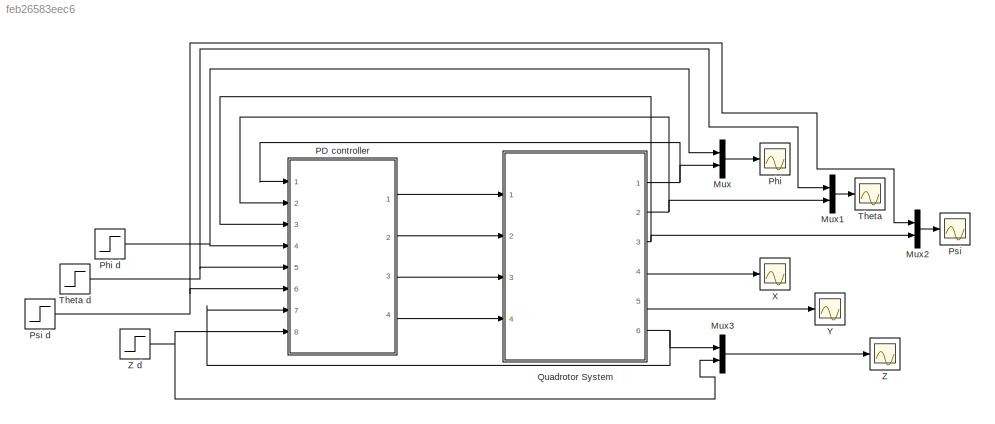
MODEL slx_feb26583eec6
KIND model
CONFIG AbsTol = auto
CONFIG EnableMultiTasking = off
CONFIG FixedStep = auto
CONFIG MaxStep = auto
CONFIG MinStep = auto
CONFIG RelTol = 1e-3
CONFIG SampleTimeConstraint = Unconstrained
CONFIG Solver = VariableStepAuto
CONFIG SolverName = VariableStepAuto
CONFIG StartTime = 0.0
CONFIG StopTime = 10.0
BLOCK [Mux] Mux
  DisplayOption = bar
  Inputs = 2
  Ports = [2, 1]
BLOCK [Mux] Mux1
  DisplayOption = bar
  Inputs = 2
  Ports = [2, 1]
BLOCK [Mux] Mux2
  DisplayOption = bar
  Inputs = 2
  Ports = [2, 1]
BLOCK [Mux] Mux3
  DisplayOption = bar
  Inputs = 2
  Ports = [2, 1]
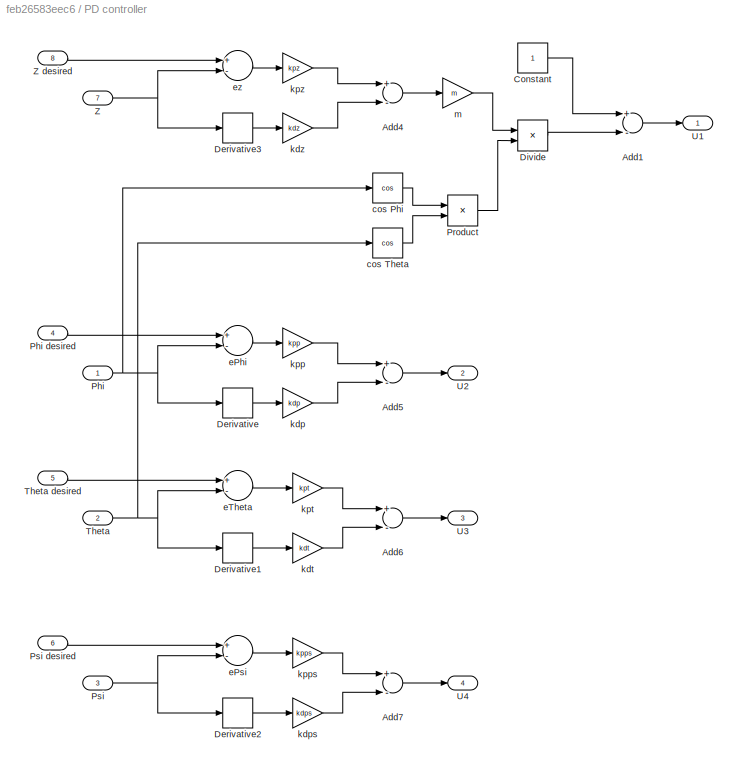
BLOCK [SubSystem] PD controller
  Ports = [8, 4]
  RequestExecContextInheritance = off
  Variant = off
BLOCK [Sum] PD controller/Add1
  InputSameDT = off
  Inputs = +-
  OutDataTypeStr = Inherit: Inherit via internal rule
  Ports = [2, 1]
  SaturateOnIntegerOverflow = off
BLOCK [Sum] PD controller/Add4
  InputSameDT = off
  Inputs = +-
  OutDataTypeStr = Inherit: Inherit via internal rule
  Ports = [2, 1]
  SaturateOnIntegerOverflow = off
BLOCK [Sum] PD controller/Add5
  InputSameDT = off
  Inputs = +-
  OutDataTypeStr = Inherit: Inherit via internal rule
  Ports = [2, 1]
  SaturateOnIntegerOverflow = off
BLOCK [Sum] PD controller/Add6
  InputSameDT = off
  Inputs = +-
  OutDataTypeStr = Inherit: Inherit via internal rule
  Ports = [2, 1]
  SaturateOnIntegerOverflow = off
BLOCK [Sum] PD controller/Add7
  InputSameDT = off
  Inputs = +-
  OutDataTypeStr = Inherit: Inherit via internal rule
  Ports = [2, 1]
  SaturateOnIntegerOverflow = off
BLOCK [Constant] PD controller/Constant
BLOCK [Derivative] PD controller/Derivative
BLOCK [Derivative] PD controller/Derivative1
BLOCK [Derivative] PD controller/Derivative2
BLOCK [Derivative] PD controller/Derivative3
BLOCK [Product] PD controller/Divide
  InputSameDT = off
  Inputs = */
  OutDataTypeStr = Inherit: Inherit via internal rule
  Ports = [2, 1]
  RndMeth = Floor
  SaturateOnIntegerOverflow = off
BLOCK [Inport] PD controller/Phi
  IconDisplay = Port number
BLOCK [Inport] PD controller/Phi desired
  IconDisplay = Port number
  Port = 4
BLOCK [Product] PD controller/Product
  InputSameDT = off
  OutDataTypeStr = Inherit: Inherit via internal rule
  Ports = [2, 1]
  SaturateOnIntegerOverflow = off
BLOCK [Inport] PD controller/Psi
  IconDisplay = Port number
  Port = 3
BLOCK [Inport] PD controller/Psi desired
  IconDisplay = Port number
  Port = 6
BLOCK [Inport] PD controller/Theta
  IconDisplay = Port number
  Port = 2
BLOCK [Inport] PD controller/Theta desired
  IconDisplay = Port number
  Port = 5
BLOCK [Outport] PD controller/U1
  IconDisplay = Port number
BLOCK [Outport] PD controller/U2
  IconDisplay = Port number
  Port = 2
BLOCK [Outport] PD controller/U3
  IconDisplay = Port number
  Port = 3
BLOCK [Outport] PD controller/U4
  IconDisplay = Port number
  Port = 4
BLOCK [Inport] PD controller/Z
  IconDisplay = Port number
  Port = 7
BLOCK [Inport] PD controller/Z desired
  IconDisplay = Port number
  Port = 8
BLOCK [Trigonometry] PD controller/cos Phi
  Operator = cos
  Ports = [1, 1]
BLOCK [Trigonometry] PD controller/cos Theta
  Operator = cos
  Ports = [1, 1]
BLOCK [Sum] PD controller/ePhi
  InputSameDT = off
  Inputs = +-
  OutDataTypeStr = Inherit: Inherit via internal rule
  Ports = [2, 1]
  SaturateOnIntegerOverflow = off
BLOCK [Sum] PD controller/ePsi
  InputSameDT = off
  Inputs = +-
  OutDataTypeStr = Inherit: Inherit via internal rule
  Ports = [2, 1]
  SaturateOnIntegerOverflow = off
BLOCK [Sum] PD controller/eTheta
  InputSameDT = off
  Inputs = +-
  OutDataTypeStr = Inherit: Inherit via internal rule
  Ports = [2, 1]
  SaturateOnIntegerOverflow = off
BLOCK [Sum] PD controller/ez
  InputSameDT = off
  Inputs = +-
  OutDataTypeStr = Inherit: Inherit via internal rule
  Ports = [2, 1]
  SaturateOnIntegerOverflow = off
BLOCK [Gain] PD controller/kdp
  Gain = kdp
  OutDataTypeStr = Inherit: Inherit via internal rule
  ParamDataTypeStr = Inherit: Inherit via internal rule
  SaturateOnIntegerOverflow = off
BLOCK [Gain] PD controller/kdps
  Gain = kdps
  OutDataTypeStr = Inherit: Inherit via internal rule
  ParamDataTypeStr = Inherit: Inherit via internal rule
  SaturateOnIntegerOverflow = off
BLOCK [Gain] PD controller/kdt
  Gain = kdt
  OutDataTypeStr = Inherit: Inherit via internal rule
  ParamDataTypeStr = Inherit: Inherit via internal rule
  SaturateOnIntegerOverflow = off
BLOCK [Gain] PD controller/kdz
  Gain = kdz
  OutDataTypeStr = Inherit: Inherit via internal rule
  ParamDataTypeStr = Inherit: Inherit via internal rule
  SaturateOnIntegerOverflow = off
BLOCK [Gain] PD controller/kpp
  Gain = kpp
  OutDataTypeStr = Inherit: Inherit via internal rule
  ParamDataTypeStr = Inherit: Inherit via internal rule
  SaturateOnIntegerOverflow = off
BLOCK [Gain] PD controller/kpps
  Gain = kpps
  OutDataTypeStr = Inherit: Inherit via internal rule
  ParamDataTypeStr = Inherit: Inherit via internal rule
  SaturateOnIntegerOverflow = off
BLOCK [Gain] PD controller/kpt
  Gain = kpt
  OutDataTypeStr = Inherit: Inherit via internal rule
  ParamDataTypeStr = Inherit: Inherit via internal rule
  SaturateOnIntegerOverflow = off
BLOCK [Gain] PD controller/kpz
  Gain = kpz
  OutDataTypeStr = Inherit: Inherit via internal rule
  ParamDataTypeStr = Inherit: Inherit via internal rule
  SaturateOnIntegerOverflow = off
BLOCK [Gain] PD controller/m
  Gain = m
  OutDataTypeStr = Inherit: Inherit via internal rule
  ParamDataTypeStr = Inherit: Inherit via internal rule
  SaturateOnIntegerOverflow = off
BLOCK [Scope] Phi
  NumInputPorts = 1
  Ports = [1]
  ScopeSpecificationString = Simulink.scopes.TimeScopeBlockCfg('CurrentConfiguration', extmgr.ConfigurationSet(extmgr.Configuration('Core','General UI',true),extmgr.Configuration('Core','Source UI',true),extmgr.Configuration('Sources','WiredSimulink',true,'DataLoggingSaveFormat','StructureWithTime','DataLoggingDecimation','1','DataLoggingDecimateData',true),extmgr.Configuration('Visuals','Time Domain',true,'DisplayPropertyDef...<+838ch>
BLOCK [Step] Phi d
  SampleTime = 0
BLOCK [Scope] Psi
  NumInputPorts = 1
  Ports = [1]
  ScopeSpecificationString = Simulink.scopes.TimeScopeBlockCfg('CurrentConfiguration', extmgr.ConfigurationSet(extmgr.Configuration('Core','General UI',true),extmgr.Configuration('Core','Source UI',true),extmgr.Configuration('Sources','WiredSimulink',true,'DataLoggingVariableName','ScopeData2','DataLoggingSaveFormat','StructureWithTime','DataLoggingDecimation','1','DataLoggingDecimateData',true),extmgr.Configuration('Visuals'...<+877ch>
BLOCK [Step] Psi d
  SampleTime = 0
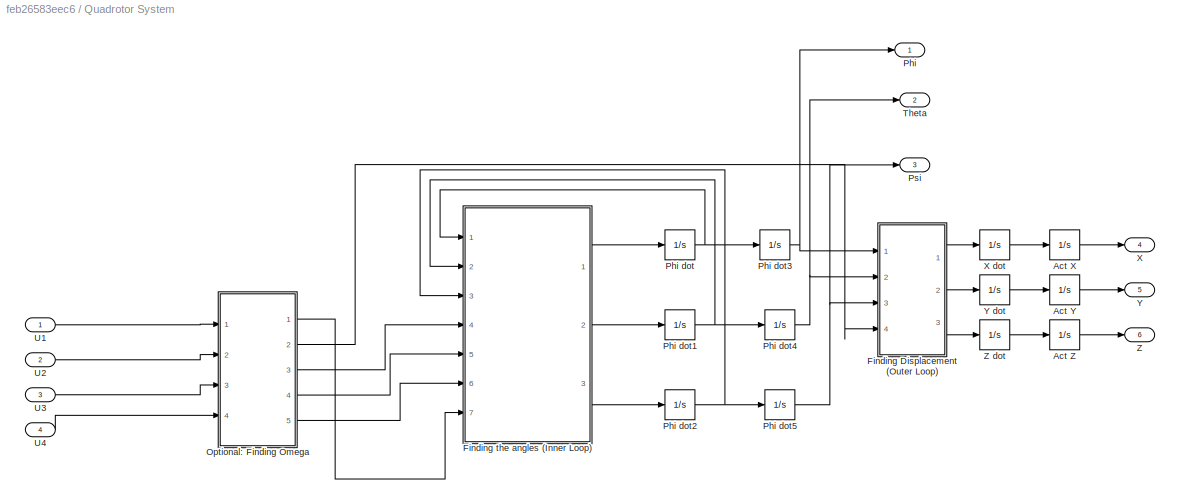
BLOCK [SubSystem] Quadrotor System
  Ports = [4, 6]
  RequestExecContextInheritance = off
  Variant = off
BLOCK [Integrator] Quadrotor System/Act X
  Ports = [1, 1]
BLOCK [Integrator] Quadrotor System/Act Y
  Ports = [1, 1]
BLOCK [Integrator] Quadrotor System/Act Z
  Ports = [1, 1]
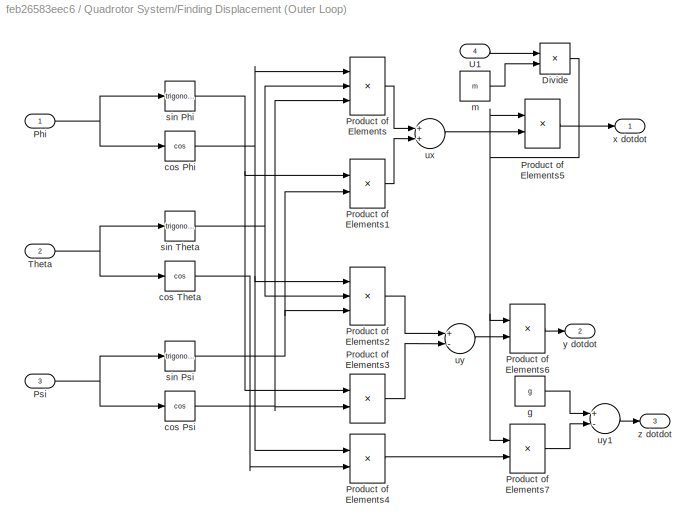
BLOCK [SubSystem] Quadrotor System/Finding Displacement (Outer Loop)
  Ports = [4, 3]
  RequestExecContextInheritance = off
  Variant = off
BLOCK [Product] Quadrotor System/Finding Displacement (Outer Loop)/Divide
  InputSameDT = off
  Inputs = */
  OutDataTypeStr = Inherit: Inherit via internal rule
  Ports = [2, 1]
  RndMeth = Floor
  SaturateOnIntegerOverflow = off
BLOCK [Inport] Quadrotor System/Finding Displacement (Outer Loop)/Phi
  IconDisplay = Port number
BLOCK [Product] Quadrotor System/Finding Displacement (Outer Loop)/Product of Elements
  InputSameDT = off
  Inputs = 3
  OutDataTypeStr = Inherit: Inherit via internal rule
  Ports = [3, 1]
  RndMeth = Floor
  SaturateOnIntegerOverflow = off
BLOCK [Product] Quadrotor System/Finding Displacement (Outer Loop)/Product of Elements1
  InputSameDT = off
  OutDataTypeStr = Inherit: Inherit via internal rule
  Ports = [2, 1]
  RndMeth = Floor
  SaturateOnIntegerOverflow = off
BLOCK [Product] Quadrotor System/Finding Displacement (Outer Loop)/Product of Elements2
  InputSameDT = off
  Inputs = 3
  OutDataTypeStr = Inherit: Inherit via internal rule
  Ports = [3, 1]
  RndMeth = Floor
  SaturateOnIntegerOverflow = off
BLOCK [Product] Quadrotor System/Finding Displacement (Outer Loop)/Product of Elements3
  InputSameDT = off
  OutDataTypeStr = Inherit: Inherit via internal rule
  Ports = [2, 1]
  RndMeth = Floor
  SaturateOnIntegerOverflow = off
BLOCK [Product] Quadrotor System/Finding Displacement (Outer Loop)/Product of Elements4
  InputSameDT = off
  OutDataTypeStr = Inherit: Inherit via internal rule
  Ports = [2, 1]
  RndMeth = Floor
  SaturateOnIntegerOverflow = off
BLOCK [Product] Quadrotor System/Finding Displacement (Outer Loop)/Product of Elements5
  InputSameDT = off
  OutDataTypeStr = Inherit: Inherit via internal rule
  Ports = [2, 1]
  RndMeth = Floor
  SaturateOnIntegerOverflow = off
BLOCK [Product] Quadrotor System/Finding Displacement (Outer Loop)/Product of Elements6
  InputSameDT = off
  OutDataTypeStr = Inherit: Inherit via internal rule
  Ports = [2, 1]
  RndMeth = Floor
  SaturateOnIntegerOverflow = off
BLOCK [Product] Quadrotor System/Finding Displacement (Outer Loop)/Product of Elements7
  InputSameDT = off
  OutDataTypeStr = Inherit: Inherit via internal rule
  Ports = [2, 1]
  RndMeth = Floor
  SaturateOnIntegerOverflow = off
BLOCK [Inport] Quadrotor System/Finding Displacement (Outer Loop)/Psi
  IconDisplay = Port number
  Port = 3
BLOCK [Inport] Quadrotor System/Finding Displacement (Outer Loop)/Theta
  IconDisplay = Port number
  Port = 2
BLOCK [Inport] Quadrotor System/Finding Displacement (Outer Loop)/U1
  IconDisplay = Port number
  Port = 4
BLOCK [Trigonometry] Quadrotor System/Finding Displacement (Outer Loop)/cos Phi
  Operator = cos
  Ports = [1, 1]
BLOCK [Trigonometry] Quadrotor System/Finding Displacement (Outer Loop)/cos Psi
  Operator = cos
  Ports = [1, 1]
BLOCK [Trigonometry] Quadrotor System/Finding Displacement (Outer Loop)/cos Theta
  Operator = cos
  Ports = [1, 1]
BLOCK [Constant] Quadrotor System/Finding Displacement (Outer Loop)/g
  Value = g
BLOCK [Constant] Quadrotor System/Finding Displacement (Outer Loop)/m
  Value = m
BLOCK [Trigonometry] Quadrotor System/Finding Displacement (Outer Loop)/sin Phi
  Ports = [1, 1]
BLOCK [Trigonometry] Quadrotor System/Finding Displacement (Outer Loop)/sin Psi
  Ports = [1, 1]
BLOCK [Trigonometry] Quadrotor System/Finding Displacement (Outer Loop)/sin Theta
  Ports = [1, 1]
BLOCK [Sum] Quadrotor System/Finding Displacement (Outer Loop)/ux
  InputSameDT = off
  OutDataTypeStr = Inherit: Inherit via internal rule
  Ports = [2, 1]
  SaturateOnIntegerOverflow = off
BLOCK [Sum] Quadrotor System/Finding Displacement (Outer Loop)/uy
  InputSameDT = off
  Inputs = +-
  OutDataTypeStr = Inherit: Inherit via internal rule
  Ports = [2, 1]
  SaturateOnIntegerOverflow = off
BLOCK [Sum] Quadrotor System/Finding Displacement (Outer Loop)/uy1
  InputSameDT = off
  Inputs = +-
  OutDataTypeStr = Inherit: Inherit via internal rule
  Ports = [2, 1]
  SaturateOnIntegerOverflow = off
BLOCK [Outport] Quadrotor System/Finding Displacement (Outer Loop)/x dotdot
  IconDisplay = Port number
BLOCK [Outport] Quadrotor System/Finding Displacement (Outer Loop)/y dotdot
  IconDisplay = Port number
  Port = 2
BLOCK [Outport] Quadrotor System/Finding Displacement (Outer Loop)/z dotdot
  IconDisplay = Port number
  Port = 3
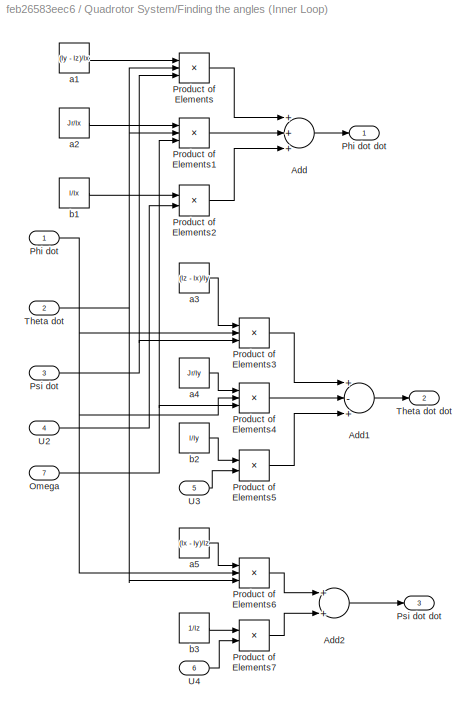
BLOCK [SubSystem] Quadrotor System/Finding the angles (Inner Loop)
  Ports = [7, 3]
  RequestExecContextInheritance = off
  Variant = off
BLOCK [Sum] Quadrotor System/Finding the angles (Inner Loop)/Add
  InputSameDT = off
  Inputs = +++
  OutDataTypeStr = Inherit: Inherit via internal rule
  Ports = [3, 1]
  SaturateOnIntegerOverflow = off
BLOCK [Sum] Quadrotor System/Finding the angles (Inner Loop)/Add1
  InputSameDT = off
  Inputs = +-+
  OutDataTypeStr = Inherit: Inherit via internal rule
  Ports = [3, 1]
  SaturateOnIntegerOverflow = off
BLOCK [Sum] Quadrotor System/Finding the angles (Inner Loop)/Add2
  InputSameDT = off
  OutDataTypeStr = Inherit: Inherit via internal rule
  Ports = [2, 1]
  SaturateOnIntegerOverflow = off
BLOCK [Inport] Quadrotor System/Finding the angles (Inner Loop)/Omega
  IconDisplay = Port number
  Port = 7
BLOCK [Inport] Quadrotor System/Finding the angles (Inner Loop)/Phi dot
  IconDisplay = Port number
BLOCK [Outport] Quadrotor System/Finding the angles (Inner Loop)/Phi dot dot
  IconDisplay = Port number
BLOCK [Product] Quadrotor System/Finding the angles (Inner Loop)/Product of Elements
  InputSameDT = off
  Inputs = 3
  OutDataTypeStr = Inherit: Inherit via internal rule
  Ports = [3, 1]
  RndMeth = Floor
  SaturateOnIntegerOverflow = off
BLOCK [Product] Quadrotor System/Finding the angles (Inner Loop)/Product of Elements1
  InputSameDT = off
  Inputs = 3
  OutDataTypeStr = Inherit: Inherit via internal rule
  Ports = [3, 1]
  RndMeth = Floor
  SaturateOnIntegerOverflow = off
BLOCK [Product] Quadrotor System/Finding the angles (Inner Loop)/Product of Elements2
  InputSameDT = off
  OutDataTypeStr = Inherit: Inherit via internal rule
  Ports = [2, 1]
  RndMeth = Floor
  SaturateOnIntegerOverflow = off
BLOCK [Product] Quadrotor System/Finding the angles (Inner Loop)/Product of Elements3
  InputSameDT = off
  Inputs = 3
  OutDataTypeStr = Inherit: Inherit via internal rule
  Ports = [3, 1]
  RndMeth = Floor
  SaturateOnIntegerOverflow = off
BLOCK [Product] Quadrotor System/Finding the angles (Inner Loop)/Product of Elements4
  InputSameDT = off
  Inputs = 3
  OutDataTypeStr = Inherit: Inherit via internal rule
  Ports = [3, 1]
  RndMeth = Floor
  SaturateOnIntegerOverflow = off
BLOCK [Product] Quadrotor System/Finding the angles (Inner Loop)/Product of Elements5
  InputSameDT = off
  OutDataTypeStr = Inherit: Inherit via internal rule
  Ports = [2, 1]
  RndMeth = Floor
  SaturateOnIntegerOverflow = off
BLOCK [Product] Quadrotor System/Finding the angles (Inner Loop)/Product of Elements6
  InputSameDT = off
  Inputs = 3
  OutDataTypeStr = Inherit: Inherit via internal rule
  Ports = [3, 1]
  RndMeth = Floor
  SaturateOnIntegerOverflow = off
BLOCK [Product] Quadrotor System/Finding the angles (Inner Loop)/Product of Elements7
  InputSameDT = off
  OutDataTypeStr = Inherit: Inherit via internal rule
  Ports = [2, 1]
  RndMeth = Floor
  SaturateOnIntegerOverflow = off
BLOCK [Inport] Quadrotor System/Finding the angles (Inner Loop)/Psi dot
  IconDisplay = Port number
  Port = 3
BLOCK [Outport] Quadrotor System/Finding the angles (Inner Loop)/Psi dot dot
  IconDisplay = Port number
  Port = 3
BLOCK [Inport] Quadrotor System/Finding the angles (Inner Loop)/Theta dot
  IconDisplay = Port number
  Port = 2
BLOCK [Outport] Quadrotor System/Finding the angles (Inner Loop)/Theta dot dot
  IconDisplay = Port number
  Port = 2
BLOCK [Inport] Quadrotor System/Finding the angles (Inner Loop)/U2
  IconDisplay = Port number
  Port = 4
BLOCK [Inport] Quadrotor System/Finding the angles (Inner Loop)/U3
  IconDisplay = Port number
  Port = 5
BLOCK [Inport] Quadrotor System/Finding the angles (Inner Loop)/U4
  IconDisplay = Port number
  Port = 6
BLOCK [Constant] Quadrotor System/Finding the angles (Inner Loop)/a1
  Value = (Iy - Iz)/Ix
BLOCK [Constant] Quadrotor System/Finding the angles (Inner Loop)/a2
  Value = Jr/Ix
BLOCK [Constant] Quadrotor System/Finding the angles (Inner Loop)/a3
  Value = (Iz - Ix)/Iy
BLOCK [Constant] Quadrotor System/Finding the angles (Inner Loop)/a4
  Value = Jr/Iy
BLOCK [Constant] Quadrotor System/Finding the angles (Inner Loop)/a5
  Value = (Ix - Iy)/Iz
BLOCK [Constant] Quadrotor System/Finding the angles (Inner Loop)/b1
  Value = l/Ix
BLOCK [Constant] Quadrotor System/Finding the angles (Inner Loop)/b2
  Value = l/Iy
BLOCK [Constant] Quadrotor System/Finding the angles (Inner Loop)/b3
  Value = 1/Iz
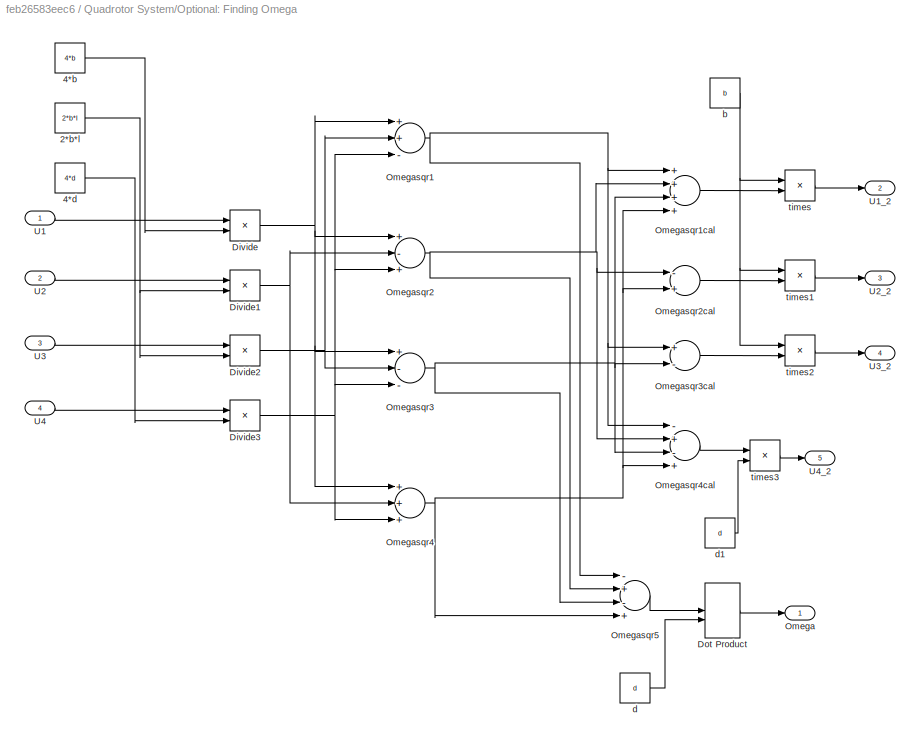
BLOCK [SubSystem] Quadrotor System/Optional: Finding Omega
  Ports = [4, 5]
  RequestExecContextInheritance = off
  Variant = off
BLOCK [Constant] Quadrotor System/Optional: Finding Omega/2*b*l
  Value = 2*b*l
BLOCK [Constant] Quadrotor System/Optional: Finding Omega/4*b
  Value = 4*b
BLOCK [Constant] Quadrotor System/Optional: Finding Omega/4*d
  Value = 4*d
BLOCK [Product] Quadrotor System/Optional: Finding Omega/Divide
  InputSameDT = off
  Inputs = */
  OutDataTypeStr = Inherit: Inherit via internal rule
  Ports = [2, 1]
  RndMeth = Floor
  SaturateOnIntegerOverflow = off
BLOCK [Product] Quadrotor System/Optional: Finding Omega/Divide1
  InputSameDT = off
  Inputs = */
  OutDataTypeStr = Inherit: Inherit via internal rule
  Ports = [2, 1]
  RndMeth = Floor
  SaturateOnIntegerOverflow = off
BLOCK [Product] Quadrotor System/Optional: Finding Omega/Divide2
  InputSameDT = off
  Inputs = */
  OutDataTypeStr = Inherit: Inherit via internal rule
  Ports = [2, 1]
  RndMeth = Floor
  SaturateOnIntegerOverflow = off
BLOCK [Product] Quadrotor System/Optional: Finding Omega/Divide3
  InputSameDT = off
  Inputs = */
  OutDataTypeStr = Inherit: Inherit via internal rule
  Ports = [2, 1]
  RndMeth = Floor
  SaturateOnIntegerOverflow = off
BLOCK [DotProduct] Quadrotor System/Optional: Finding Omega/Dot Product
  OutDataTypeStr = Inherit: Inherit via internal rule
BLOCK [Outport] Quadrotor System/Optional: Finding Omega/Omega
  IconDisplay = Port number
BLOCK [Sum] Quadrotor System/Optional: Finding Omega/Omegasqr1
  InputSameDT = off
  Inputs = ++-
  OutDataTypeStr = Inherit: Inherit via internal rule
  Ports = [3, 1]
  SaturateOnIntegerOverflow = off
BLOCK [Sum] Quadrotor System/Optional: Finding Omega/Omegasqr1cal
  InputSameDT = off
  Inputs = ++++
  OutDataTypeStr = Inherit: Inherit via internal rule
  Ports = [4, 1]
  SaturateOnIntegerOverflow = off
BLOCK [Sum] Quadrotor System/Optional: Finding Omega/Omegasqr2
  InputSameDT = off
  Inputs = +-+
  OutDataTypeStr = Inherit: Inherit via internal rule
  Ports = [3, 1]
  SaturateOnIntegerOverflow = off
BLOCK [Sum] Quadrotor System/Optional: Finding Omega/Omegasqr2cal
  InputSameDT = off
  Inputs = -+
  OutDataTypeStr = Inherit: Inherit via internal rule
  Ports = [2, 1]
  SaturateOnIntegerOverflow = off
BLOCK [Sum] Quadrotor System/Optional: Finding Omega/Omegasqr3
  InputSameDT = off
  Inputs = +--
  OutDataTypeStr = Inherit: Inherit via internal rule
  Ports = [3, 1]
  SaturateOnIntegerOverflow = off
BLOCK [Sum] Quadrotor System/Optional: Finding Omega/Omegasqr3cal
  InputSameDT = off
  Inputs = +-
  OutDataTypeStr = Inherit: Inherit via internal rule
  Ports = [2, 1]
  SaturateOnIntegerOverflow = off
BLOCK [Sum] Quadrotor System/Optional: Finding Omega/Omegasqr4
  InputSameDT = off
  Inputs = +++
  OutDataTypeStr = Inherit: Inherit via internal rule
  Ports = [3, 1]
  SaturateOnIntegerOverflow = off
BLOCK [Sum] Quadrotor System/Optional: Finding Omega/Omegasqr4cal
  InputSameDT = off
  Inputs = -+-+
  OutDataTypeStr = Inherit: Inherit via internal rule
  Ports = [4, 1]
  SaturateOnIntegerOverflow = off
BLOCK [Sum] Quadrotor System/Optional: Finding Omega/Omegasqr5
  InputSameDT = off
  Inputs = -+-+
  OutDataTypeStr = Inherit: Inherit via internal rule
  Ports = [4, 1]
  SaturateOnIntegerOverflow = off
BLOCK [Inport] Quadrotor System/Optional: Finding Omega/U1
  IconDisplay = Port number
BLOCK [Outport] Quadrotor System/Optional: Finding Omega/U1_2
  IconDisplay = Port number
  Port = 2
BLOCK [Inport] Quadrotor System/Optional: Finding Omega/U2
  IconDisplay = Port number
  Port = 2
BLOCK [Outport] Quadrotor System/Optional: Finding Omega/U2_2
  IconDisplay = Port number
  Port = 3
BLOCK [Inport] Quadrotor System/Optional: Finding Omega/U3
  IconDisplay = Port number
  Port = 3
BLOCK [Outport] Quadrotor System/Optional: Finding Omega/U3_2
  IconDisplay = Port number
  Port = 4
BLOCK [Inport] Quadrotor System/Optional: Finding Omega/U4
  IconDisplay = Port number
  Port = 4
BLOCK [Outport] Quadrotor System/Optional: Finding Omega/U4_2
  IconDisplay = Port number
  Port = 5
BLOCK [Constant] Quadrotor System/Optional: Finding Omega/b
  Value = b
BLOCK [Constant] Quadrotor System/Optional: Finding Omega/d
  Value = d
BLOCK [Constant] Quadrotor System/Optional: Finding Omega/d1
  Value = d
BLOCK [Product] Quadrotor System/Optional: Finding Omega/times
  InputSameDT = off
  Inputs = **
  OutDataTypeStr = Inherit: Inherit via internal rule
  Ports = [2, 1]
  RndMeth = Floor
  SaturateOnIntegerOverflow = off
BLOCK [Product] Quadrotor System/Optional: Finding Omega/times1
  InputSameDT = off
  Inputs = **
  OutDataTypeStr = Inherit: Inherit via internal rule
  Ports = [2, 1]
  RndMeth = Floor
  SaturateOnIntegerOverflow = off
BLOCK [Product] Quadrotor System/Optional: Finding Omega/times2
  InputSameDT = off
  Inputs = **
  OutDataTypeStr = Inherit: Inherit via internal rule
  Ports = [2, 1]
  RndMeth = Floor
  SaturateOnIntegerOverflow = off
BLOCK [Product] Quadrotor System/Optional: Finding Omega/times3
  InputSameDT = off
  Inputs = **
  OutDataTypeStr = Inherit: Inherit via internal rule
  Ports = [2, 1]
  RndMeth = Floor
  SaturateOnIntegerOverflow = off
BLOCK [Outport] Quadrotor System/Phi
  IconDisplay = Port number
BLOCK [Integrator] Quadrotor System/Phi dot
  Ports = [1, 1]
BLOCK [Integrator] Quadrotor System/Phi dot1
  Ports = [1, 1]
  ZeroCross = off
BLOCK [Integrator] Quadrotor System/Phi dot2
  Ports = [1, 1]
  ZeroCross = off
BLOCK [Integrator] Quadrotor System/Phi dot3
  Ports = [1, 1]
  ZeroCross = off
BLOCK [Integrator] Quadrotor System/Phi dot4
  Ports = [1, 1]
  ZeroCross = off
BLOCK [Integrator] Quadrotor System/Phi dot5
  Ports = [1, 1]
  ZeroCross = off
BLOCK [Outport] Quadrotor System/Psi
  IconDisplay = Port number
  Port = 3
BLOCK [Outport] Quadrotor System/Theta
  IconDisplay = Port number
  Port = 2
BLOCK [Inport] Quadrotor System/U1
  IconDisplay = Port number
BLOCK [Inport] Quadrotor System/U2
  IconDisplay = Port number
  Port = 2
BLOCK [Inport] Quadrotor System/U3
  IconDisplay = Port number
  Port = 3
BLOCK [Inport] Quadrotor System/U4
  IconDisplay = Port number
  Port = 4
BLOCK [Outport] Quadrotor System/X
  IconDisplay = Port number
  Port = 4
BLOCK [Integrator] Quadrotor System/X dot
  Ports = [1, 1]
BLOCK [Outport] Quadrotor System/Y
  IconDisplay = Port number
  Port = 5
BLOCK [Integrator] Quadrotor System/Y dot
  Ports = [1, 1]
BLOCK [Outport] Quadrotor System/Z
  IconDisplay = Port number
  Port = 6
BLOCK [Integrator] Quadrotor System/Z dot
  Ports = [1, 1]
BLOCK [Scope] Theta
  NumInputPorts = 1
  Ports = [1]
  ScopeSpecificationString = Simulink.scopes.TimeScopeBlockCfg('CurrentConfiguration', extmgr.ConfigurationSet(extmgr.Configuration('Core','General UI',true),extmgr.Configuration('Core','Source UI',true),extmgr.Configuration('Sources','WiredSimulink',true,'DataLoggingVariableName','ScopeData1','DataLoggingSaveFormat','StructureWithTime','DataLoggingDecimation','1','DataLoggingDecimateData',true),extmgr.Configuration('Visuals'...<+877ch>
BLOCK [Step] Theta d
  SampleTime = 0
BLOCK [Scope] X
  NumInputPorts = 1
  Ports = [1]
  ScopeSpecificationString = Simulink.scopes.TimeScopeBlockCfg('CurrentConfiguration', extmgr.ConfigurationSet(extmgr.Configuration('Core','General UI',true),extmgr.Configuration('Core','Source UI',true),extmgr.Configuration('Sources','WiredSimulink',true,'DataLoggingVariableName','ScopeData3','DataLoggingSaveFormat','StructureWithTime','DataLoggingLimitDataPoints',true,'DataLoggingDecimation','1','DataLoggingDecimateData',tr...<+911ch>
BLOCK [Scope] Y
  NumInputPorts = 1
  Ports = [1]
  ScopeSpecificationString = Simulink.scopes.TimeScopeBlockCfg('CurrentConfiguration', extmgr.ConfigurationSet(extmgr.Configuration('Core','General UI',true),extmgr.Configuration('Core','Source UI',true),extmgr.Configuration('Sources','WiredSimulink',true,'DataLoggingVariableName','ScopeData5','DataLoggingSaveFormat','StructureWithTime','DataLoggingLimitDataPoints',true,'DataLoggingDecimation','1','DataLoggingDecimateData',tr...<+911ch>
BLOCK [Scope] Z
  NumInputPorts = 1
  Ports = [1]
  ScopeSpecificationString = Simulink.scopes.TimeScopeBlockCfg('CurrentConfiguration', extmgr.ConfigurationSet(extmgr.Configuration('Core','General UI',true),extmgr.Configuration('Core','Source UI',true),extmgr.Configuration('Sources','WiredSimulink',true,'DataLoggingVariableName','ScopeData4','DataLoggingSaveFormat','StructureWithTime','DataLoggingDecimation','1','DataLoggingDecimateData',true),extmgr.Configuration('Visuals'...<+877ch>
BLOCK [Step] Z d
  SampleTime = 0
LINE Mux1:1 -> Theta:1
LINE Mux2:1 -> Psi:1
LINE Mux3:1 -> Z:1
LINE Mux:1 -> Phi:1
LINE PD controller/Add1:1 -> PD controller/U1:1
LINE PD controller/Add4:1 -> PD controller/m:1
LINE PD controller/Add5:1 -> PD controller/U2:1
LINE PD controller/Add6:1 -> PD controller/U3:1
LINE PD controller/Add7:1 -> PD controller/U4:1
LINE PD controller/Constant:1 -> PD controller/Add1:1
LINE PD controller/Derivative1:1 -> PD controller/kdt:1
LINE PD controller/Derivative2:1 -> PD controller/kdps:1
LINE PD controller/Derivative3:1 -> PD controller/kdz:1
LINE PD controller/Derivative:1 -> PD controller/kdp:1
LINE PD controller/Divide:1 -> PD controller/Add1:2
LINE PD controller/Phi desired:1 -> PD controller/ePhi:1
NET PD controller/Phi:1 -> PD controller/Derivative:1, PD controller/cos Phi:1, PD controller/ePhi:2
LINE PD controller/Product:1 -> PD controller/Divide:2
LINE PD controller/Psi desired:1 -> PD controller/ePsi:1
NET PD controller/Psi:1 -> PD controller/Derivative2:1, PD controller/ePsi:2
LINE PD controller/Theta desired:1 -> PD controller/eTheta:1
NET PD controller/Theta:1 -> PD controller/Derivative1:1, PD controller/cos Theta:1, PD controller/eTheta:2
LINE PD controller/Z desired:1 -> PD controller/ez:1
NET PD controller/Z:1 -> PD controller/Derivative3:1, PD controller/ez:2
LINE PD controller/cos Phi:1 -> PD controller/Product:1
LINE PD controller/cos Theta:1 -> PD controller/Product:2
LINE PD controller/ePhi:1 -> PD controller/kpp:1
LINE PD controller/ePsi:1 -> PD controller/kpps:1
LINE PD controller/eTheta:1 -> PD controller/kpt:1
LINE PD controller/ez:1 -> PD controller/kpz:1
LINE PD controller/kdp:1 -> PD controller/Add5:2
LINE PD controller/kdps:1 -> PD controller/Add7:2
LINE PD controller/kdt:1 -> PD controller/Add6:2
LINE PD controller/kdz:1 -> PD controller/Add4:2
LINE PD controller/kpp:1 -> PD controller/Add5:1
LINE PD controller/kpps:1 -> PD controller/Add7:1
LINE PD controller/kpt:1 -> PD controller/Add6:1
LINE PD controller/kpz:1 -> PD controller/Add4:1
LINE PD controller/m:1 -> PD controller/Divide:1
LINE PD controller:1 -> Quadrotor System:1
LINE PD controller:2 -> Quadrotor System:2
LINE PD controller:3 -> Quadrotor System:3
LINE PD controller:4 -> Quadrotor System:4
NET Phi d:1 -> Mux:1, PD controller:4
NET Psi d:1 -> Mux2:1, PD controller:6
LINE Quadrotor System/Act X:1 -> Quadrotor System/X:1
LINE Quadrotor System/Act Y:1 -> Quadrotor System/Y:1
LINE Quadrotor System/Act Z:1 -> Quadrotor System/Z:1
NET Quadrotor System/Finding Displacement (Outer Loop)/Divide:1 -> Quadrotor System/Finding Displacement (Outer Loop)/Product of Elements5:1, Quadrotor System/Finding Displacement (Outer Loop)/Product of Elements6:1, Quadrotor System/Finding Displacement (Outer Loop)/Product of Elements7:1
NET Quadrotor System/Finding Displacement (Outer Loop)/Phi:1 -> Quadrotor System/Finding Displacement (Outer Loop)/cos Phi:1, Quadrotor System/Finding Displacement (Outer Loop)/sin Phi:1
LINE Quadrotor System/Finding Displacement (Outer Loop)/Product of Elements1:1 -> Quadrotor System/Finding Displacement (Outer Loop)/ux:2
LINE Quadrotor System/Finding Displacement (Outer Loop)/Product of Elements2:1 -> Quadrotor System/Finding Displacement (Outer Loop)/uy:1
LINE Quadrotor System/Finding Displacement (Outer Loop)/Product of Elements3:1 -> Quadrotor System/Finding Displacement (Outer Loop)/uy:2
LINE Quadrotor System/Finding Displacement (Outer Loop)/Product of Elements4:1 -> Quadrotor System/Finding Displacement (Outer Loop)/Product of Elements7:2
LINE Quadrotor System/Finding Displacement (Outer Loop)/Product of Elements5:1 -> Quadrotor System/Finding Displacement (Outer Loop)/x dotdot:1
LINE Quadrotor System/Finding Displacement (Outer Loop)/Product of Elements6:1 -> Quadrotor System/Finding Displacement (Outer Loop)/y dotdot:1
LINE Quadrotor System/Finding Displacement (Outer Loop)/Product of Elements7:1 -> Quadrotor System/Finding Displacement (Outer Loop)/uy1:2
LINE Quadrotor System/Finding Displacement (Outer Loop)/Product of Elements:1 -> Quadrotor System/Finding Displacement (Outer Loop)/ux:1
NET Quadrotor System/Finding Displacement (Outer Loop)/Psi:1 -> Quadrotor System/Finding Displacement (Outer Loop)/cos Psi:1, Quadrotor System/Finding Displacement (Outer Loop)/sin Psi:1
NET Quadrotor System/Finding Displacement (Outer Loop)/Theta:1 -> Quadrotor System/Finding Displacement (Outer Loop)/cos Theta:1, Quadrotor System/Finding Displacement (Outer Loop)/sin Theta:1
LINE Quadrotor System/Finding Displacement (Outer Loop)/U1:1 -> Quadrotor System/Finding Displacement (Outer Loop)/Divide:1
NET Quadrotor System/Finding Displacement (Outer Loop)/cos Phi:1 -> Quadrotor System/Finding Displacement (Outer Loop)/Product of Elements2:1, Quadrotor System/Finding Displacement (Outer Loop)/Product of Elements4:1, Quadrotor System/Finding Displacement (Outer Loop)/Product of Elements:1
NET Quadrotor System/Finding Displacement (Outer Loop)/cos Psi:1 -> Quadrotor System/Finding Displacement (Outer Loop)/Product of Elements3:2, Quadrotor System/Finding Displacement (Outer Loop)/Product of Elements:3
LINE Quadrotor System/Finding Displacement (Outer Loop)/cos Theta:1 -> Quadrotor System/Finding Displacement (Outer Loop)/Product of Elements4:2
LINE Quadrotor System/Finding Displacement (Outer Loop)/g:1 -> Quadrotor System/Finding Displacement (Outer Loop)/uy1:1
LINE Quadrotor System/Finding Displacement (Outer Loop)/m:1 -> Quadrotor System/Finding Displacement (Outer Loop)/Divide:2
NET Quadrotor System/Finding Displacement (Outer Loop)/sin Phi:1 -> Quadrotor System/Finding Displacement (Outer Loop)/Product of Elements1:1, Quadrotor System/Finding Displacement (Outer Loop)/Product of Elements3:1
NET Quadrotor System/Finding Displacement (Outer Loop)/sin Psi:1 -> Quadrotor System/Finding Displacement (Outer Loop)/Product of Elements1:2, Quadrotor System/Finding Displacement (Outer Loop)/Product of Elements2:3
NET Quadrotor System/Finding Displacement (Outer Loop)/sin Theta:1 -> Quadrotor System/Finding Displacement (Outer Loop)/Product of Elements2:2, Quadrotor System/Finding Displacement (Outer Loop)/Product of Elements:2
LINE Quadrotor System/Finding Displacement (Outer Loop)/ux:1 -> Quadrotor System/Finding Displacement (Outer Loop)/Product of Elements5:2
LINE Quadrotor System/Finding Displacement (Outer Loop)/uy1:1 -> Quadrotor System/Finding Displacement (Outer Loop)/z dotdot:1
LINE Quadrotor System/Finding Displacement (Outer Loop)/uy:1 -> Quadrotor System/Finding Displacement (Outer Loop)/Product of Elements6:2
LINE Quadrotor System/Finding Displacement (Outer Loop):1 -> Quadrotor System/X dot:1
LINE Quadrotor System/Finding Displacement (Outer Loop):2 -> Quadrotor System/Y dot:1
LINE Quadrotor System/Finding Displacement (Outer Loop):3 -> Quadrotor System/Z dot:1
LINE Quadrotor System/Finding the angles (Inner Loop)/Add1:1 -> Quadrotor System/Finding the angles (Inner Loop)/Theta dot dot:1
LINE Quadrotor System/Finding the angles (Inner Loop)/Add2:1 -> Quadrotor System/Finding the angles (Inner Loop)/Psi dot dot:1
LINE Quadrotor System/Finding the angles (Inner Loop)/Add:1 -> Quadrotor System/Finding the angles (Inner Loop)/Phi dot dot:1
NET Quadrotor System/Finding the angles (Inner Loop)/Omega:1 -> Quadrotor System/Finding the angles (Inner Loop)/Product of Elements1:3, Quadrotor System/Finding the angles (Inner Loop)/Product of Elements4:3
NET Quadrotor System/Finding the angles (Inner Loop)/Phi dot:1 -> Quadrotor System/Finding the angles (Inner Loop)/Product of Elements3:2, Quadrotor System/Finding the angles (Inner Loop)/Product of Elements4:2, Quadrotor System/Finding the angles (Inner Loop)/Product of Elements6:2
LINE Quadrotor System/Finding the angles (Inner Loop)/Product of Elements1:1 -> Quadrotor System/Finding the angles (Inner Loop)/Add:2
LINE Quadrotor System/Finding the angles (Inner Loop)/Product of Elements2:1 -> Quadrotor System/Finding the angles (Inner Loop)/Add:3
LINE Quadrotor System/Finding the angles (Inner Loop)/Product of Elements3:1 -> Quadrotor System/Finding the angles (Inner Loop)/Add1:1
LINE Quadrotor System/Finding the angles (Inner Loop)/Product of Elements4:1 -> Quadrotor System/Finding the angles (Inner Loop)/Add1:2
LINE Quadrotor System/Finding the angles (Inner Loop)/Product of Elements5:1 -> Quadrotor System/Finding the angles (Inner Loop)/Add1:3
LINE Quadrotor System/Finding the angles (Inner Loop)/Product of Elements6:1 -> Quadrotor System/Finding the angles (Inner Loop)/Add2:1
LINE Quadrotor System/Finding the angles (Inner Loop)/Product of Elements7:1 -> Quadrotor System/Finding the angles (Inner Loop)/Add2:2
LINE Quadrotor System/Finding the angles (Inner Loop)/Product of Elements:1 -> Quadrotor System/Finding the angles (Inner Loop)/Add:1
NET Quadrotor System/Finding the angles (Inner Loop)/Psi dot:1 -> Quadrotor System/Finding the angles (Inner Loop)/Product of Elements3:3, Quadrotor System/Finding the angles (Inner Loop)/Product of Elements:3
NET Quadrotor System/Finding the angles (Inner Loop)/Theta dot:1 -> Quadrotor System/Finding the angles (Inner Loop)/Product of Elements1:2, Quadrotor System/Finding the angles (Inner Loop)/Product of Elements6:3, Quadrotor System/Finding the angles (Inner Loop)/Product of Elements:2
LINE Quadrotor System/Finding the angles (Inner Loop)/U2:1 -> Quadrotor System/Finding the angles (Inner Loop)/Product of Elements2:2
LINE Quadrotor System/Finding the angles (Inner Loop)/U3:1 -> Quadrotor System/Finding the angles (Inner Loop)/Product of Elements5:2
LINE Quadrotor System/Finding the angles (Inner Loop)/U4:1 -> Quadrotor System/Finding the angles (Inner Loop)/Product of Elements7:2
LINE Quadrotor System/Finding the angles (Inner Loop)/a1:1 -> Quadrotor System/Finding the angles (Inner Loop)/Product of Elements:1
LINE Quadrotor System/Finding the angles (Inner Loop)/a2:1 -> Quadrotor System/Finding the angles (Inner Loop)/Product of Elements1:1
LINE Quadrotor System/Finding the angles (Inner Loop)/a3:1 -> Quadrotor System/Finding the angles (Inner Loop)/Product of Elements3:1
LINE Quadrotor System/Finding the angles (Inner Loop)/a4:1 -> Quadrotor System/Finding the angles (Inner Loop)/Product of Elements4:1
LINE Quadrotor System/Finding the angles (Inner Loop)/a5:1 -> Quadrotor System/Finding the angles (Inner Loop)/Product of Elements6:1
LINE Quadrotor System/Finding the angles (Inner Loop)/b1:1 -> Quadrotor System/Finding the angles (Inner Loop)/Product of Elements2:1
LINE Quadrotor System/Finding the angles (Inner Loop)/b2:1 -> Quadrotor System/Finding the angles (Inner Loop)/Product of Elements5:1
LINE Quadrotor System/Finding the angles (Inner Loop)/b3:1 -> Quadrotor System/Finding the angles (Inner Loop)/Product of Elements7:1
LINE Quadrotor System/Finding the angles (Inner Loop):1 -> Quadrotor System/Phi dot:1
LINE Quadrotor System/Finding the angles (Inner Loop):2 -> Quadrotor System/Phi dot1:1
LINE Quadrotor System/Finding the angles (Inner Loop):3 -> Quadrotor System/Phi dot2:1
NET Quadrotor System/Optional: Finding Omega/2*b*l:1 -> Quadrotor System/Optional: Finding Omega/Divide1:2, Quadrotor System/Optional: Finding Omega/Divide2:2
LINE Quadrotor System/Optional: Finding Omega/4*b:1 -> Quadrotor System/Optional: Finding Omega/Divide:2
LINE Quadrotor System/Optional: Finding Omega/4*d:1 -> Quadrotor System/Optional: Finding Omega/Divide3:2
NET Quadrotor System/Optional: Finding Omega/Divide1:1 -> Quadrotor System/Optional: Finding Omega/Omegasqr2:2, Quadrotor System/Optional: Finding Omega/Omegasqr4:2
NET Quadrotor System/Optional: Finding Omega/Divide2:1 -> Quadrotor System/Optional: Finding Omega/Omegasqr1:2, Quadrotor System/Optional: Finding Omega/Omegasqr3:2
NET Quadrotor System/Optional: Finding Omega/Divide3:1 -> Quadrotor System/Optional: Finding Omega/Omegasqr1:3, Quadrotor System/Optional: Finding Omega/Omegasqr2:3, Quadrotor System/Optional: Finding Omega/Omegasqr3:3, Quadrotor System/Optional: Finding Omega/Omegasqr4:3
NET Quadrotor System/Optional: Finding Omega/Divide:1 -> Quadrotor System/Optional: Finding Omega/Omegasqr1:1, Quadrotor System/Optional: Finding Omega/Omegasqr2:1, Quadrotor System/Optional: Finding Omega/Omegasqr3:1, Quadrotor System/Optional: Finding Omega/Omegasqr4:1
LINE Quadrotor System/Optional: Finding Omega/Dot Product:1 -> Quadrotor System/Optional: Finding Omega/Omega:1
NET Quadrotor System/Optional: Finding Omega/Omegasqr1:1 -> Quadrotor System/Optional: Finding Omega/Omegasqr1cal:1, Quadrotor System/Optional: Finding Omega/Omegasqr3cal:1, Quadrotor System/Optional: Finding Omega/Omegasqr4cal:1, Quadrotor System/Optional: Finding Omega/Omegasqr5:1
LINE Quadrotor System/Optional: Finding Omega/Omegasqr1cal:1 -> Quadrotor System/Optional: Finding Omega/times:2
NET Quadrotor System/Optional: Finding Omega/Omegasqr2:1 -> Quadrotor System/Optional: Finding Omega/Omegasqr1cal:2, Quadrotor System/Optional: Finding Omega/Omegasqr2cal:1, Quadrotor System/Optional: Finding Omega/Omegasqr4cal:2, Quadrotor System/Optional: Finding Omega/Omegasqr5:2
LINE Quadrotor System/Optional: Finding Omega/Omegasqr2cal:1 -> Quadrotor System/Optional: Finding Omega/times1:2
NET Quadrotor System/Optional: Finding Omega/Omegasqr3:1 -> Quadrotor System/Optional: Finding Omega/Omegasqr1cal:3, Quadrotor System/Optional: Finding Omega/Omegasqr3cal:2, Quadrotor System/Optional: Finding Omega/Omegasqr4cal:3, Quadrotor System/Optional: Finding Omega/Omegasqr5:3
LINE Quadrotor System/Optional: Finding Omega/Omegasqr3cal:1 -> Quadrotor System/Optional: Finding Omega/times2:2
NET Quadrotor System/Optional: Finding Omega/Omegasqr4:1 -> Quadrotor System/Optional: Finding Omega/Omegasqr1cal:4, Quadrotor System/Optional: Finding Omega/Omegasqr2cal:2, Quadrotor System/Optional: Finding Omega/Omegasqr4cal:4, Quadrotor System/Optional: Finding Omega/Omegasqr5:4
LINE Quadrotor System/Optional: Finding Omega/Omegasqr4cal:1 -> Quadrotor System/Optional: Finding Omega/times3:1
LINE Quadrotor System/Optional: Finding Omega/Omegasqr5:1 -> Quadrotor System/Optional: Finding Omega/Dot Product:1
LINE Quadrotor System/Optional: Finding Omega/U1:1 -> Quadrotor System/Optional: Finding Omega/Divide:1
LINE Quadrotor System/Optional: Finding Omega/U2:1 -> Quadrotor System/Optional: Finding Omega/Divide1:1
LINE Quadrotor System/Optional: Finding Omega/U3:1 -> Quadrotor System/Optional: Finding Omega/Divide2:1
LINE Quadrotor System/Optional: Finding Omega/U4:1 -> Quadrotor System/Optional: Finding Omega/Divide3:1
NET Quadrotor System/Optional: Finding Omega/b:1 -> Quadrotor System/Optional: Finding Omega/times1:1, Quadrotor System/Optional: Finding Omega/times2:1, Quadrotor System/Optional: Finding Omega/times:1
LINE Quadrotor System/Optional: Finding Omega/d1:1 -> Quadrotor System/Optional: Finding Omega/times3:2
LINE Quadrotor System/Optional: Finding Omega/d:1 -> Quadrotor System/Optional: Finding Omega/Dot Product:2
LINE Quadrotor System/Optional: Finding Omega/times1:1 -> Quadrotor System/Optional: Finding Omega/U2_2:1
LINE Quadrotor System/Optional: Finding Omega/times2:1 -> Quadrotor System/Optional: Finding Omega/U3_2:1
LINE Quadrotor System/Optional: Finding Omega/times3:1 -> Quadrotor System/Optional: Finding Omega/U4_2:1
LINE Quadrotor System/Optional: Finding Omega/times:1 -> Quadrotor System/Optional: Finding Omega/U1_2:1
LINE Quadrotor System/Optional: Finding Omega:1 -> Quadrotor System/Finding the angles (Inner Loop):7
LINE Quadrotor System/Optional: Finding Omega:2 -> Quadrotor System/Finding Displacement (Outer Loop):4
LINE Quadrotor System/Optional: Finding Omega:3 -> Quadrotor System/Finding the angles (Inner Loop):4
LINE Quadrotor System/Optional: Finding Omega:4 -> Quadrotor System/Finding the angles (Inner Loop):5
LINE Quadrotor System/Optional: Finding Omega:5 -> Quadrotor System/Finding the angles (Inner Loop):6
NET Quadrotor System/Phi dot1:1 -> Quadrotor System/Finding the angles (Inner Loop):2, Quadrotor System/Phi dot4:1
NET Quadrotor System/Phi dot2:1 -> Quadrotor System/Finding the angles (Inner Loop):3, Quadrotor System/Phi dot5:1
NET Quadrotor System/Phi dot3:1 -> Quadrotor System/Finding Displacement (Outer Loop):1, Quadrotor System/Phi:1
NET Quadrotor System/Phi dot4:1 -> Quadrotor System/Finding Displacement (Outer Loop):2, Quadrotor System/Theta:1
NET Quadrotor System/Phi dot5:1 -> Quadrotor System/Finding Displacement (Outer Loop):3, Quadrotor System/Psi:1
NET Quadrotor System/Phi dot:1 -> Quadrotor System/Finding the angles (Inner Loop):1, Quadrotor System/Phi dot3:1
LINE Quadrotor System/U1:1 -> Quadrotor System/Optional: Finding Omega:1
LINE Quadrotor System/U2:1 -> Quadrotor System/Optional: Finding Omega:2
LINE Quadrotor System/U3:1 -> Quadrotor System/Optional: Finding Omega:3
LINE Quadrotor System/U4:1 -> Quadrotor System/Optional: Finding Omega:4
LINE Quadrotor System/X dot:1 -> Quadrotor System/Act X:1
LINE Quadrotor System/Y dot:1 -> Quadrotor System/Act Y:1
LINE Quadrotor System/Z dot:1 -> Quadrotor System/Act Z:1
NET Quadrotor System:1 -> Mux:2, PD controller:1
NET Quadrotor System:2 -> Mux1:2, PD controller:2
NET Quadrotor System:3 -> Mux2:2, PD controller:3
LINE Quadrotor System:4 -> X:1
LINE Quadrotor System:5 -> Y:1
NET Quadrotor System:6 -> Mux3:1, PD controller:7
NET Theta d:1 -> Mux1:1, PD controller:5
NET Z d:1 -> Mux3:2, PD controller:8
note: NET lines group one-source signal fan-out (src -> all destinations, sorted); 1:1 wires keep LINE
